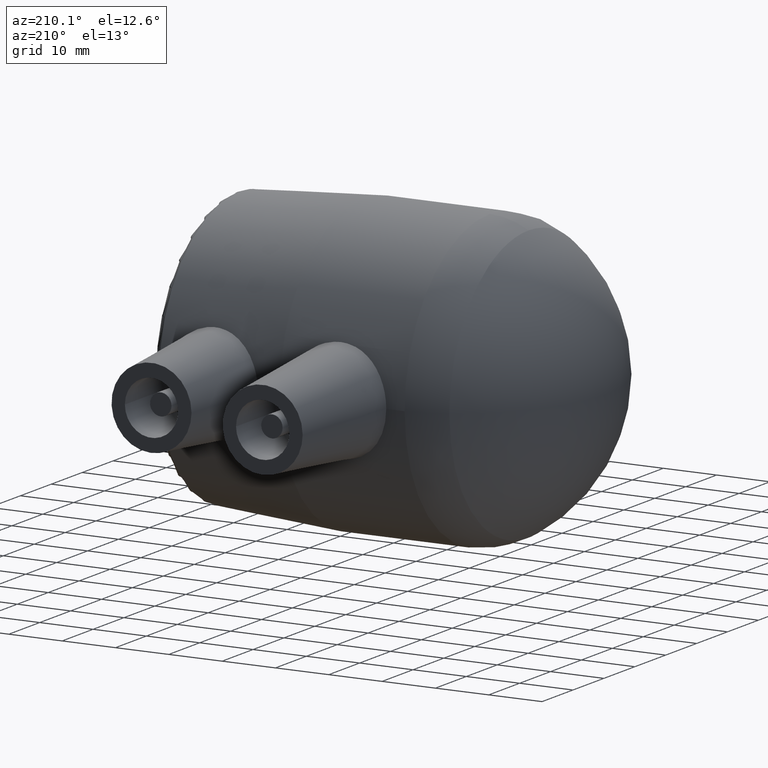
[diagram: clean part render]
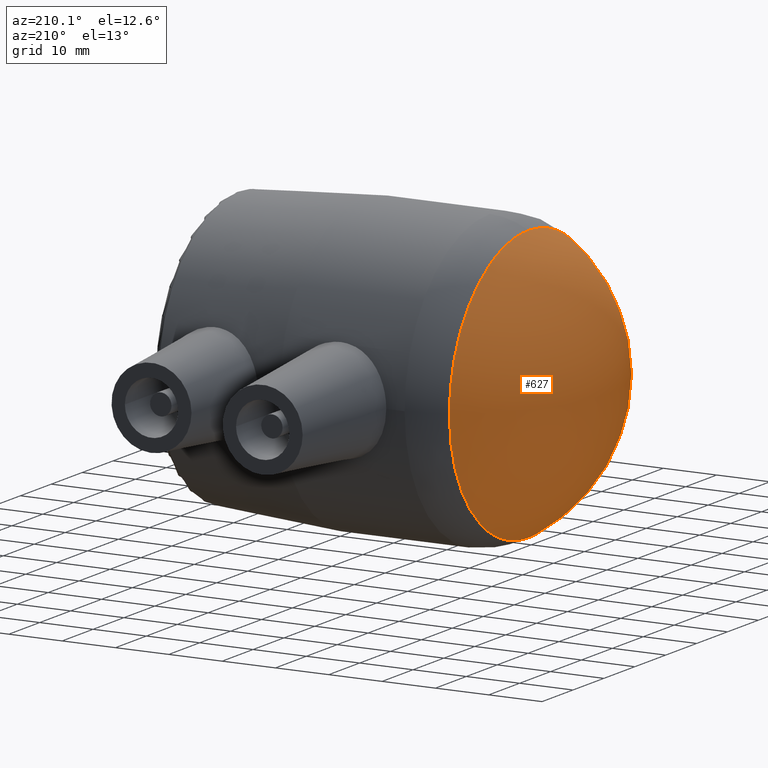
[diagram: same view with one face highlighted and labeled with its STEP entity id]
A machine part, auxiliary view. The second image highlights one B-rep face of the part: STEP entity #627.
In plain terms, the highlighted spherical surface has radius 29.5167 mm.
Its self-contained STEP definition (entity closure, byte-faithful):
#58=SPHERICAL_SURFACE('',#720,29.5166666666666);
#153=FACE_OUTER_BOUND('',#220,.T.);
#220=EDGE_LOOP('',(#557,#558));
#264=CIRCLE('',#713,25.5527192008879);
#265=CIRCLE('',#714,25.5527192008879);
#321=VERTEX_POINT('',#1241);
#322=VERTEX_POINT('',#1245);
#399=EDGE_CURVE('',#321,#322,#264,.T.);
#400=EDGE_CURVE('',#322,#321,#265,.T.);
#557=ORIENTED_EDGE('',*,*,#400,.F.);
#558=ORIENTED_EDGE('',*,*,#399,.F.);
#627=ADVANCED_FACE('',(#153),#58,.T.);
#713=AXIS2_PLACEMENT_3D('',#1246,#909,#910);
#714=AXIS2_PLACEMENT_3D('',#1247,#911,#912);
#720=AXIS2_PLACEMENT_3D('',#1255,#923,#924);
#909=DIRECTION('center_axis',(1.,2.83384649210207E-19,0.));
#910=DIRECTION('ref_axis',(0.,0.,-1.));
#911=DIRECTION('center_axis',(1.,2.83384649210207E-19,0.));
#912=DIRECTION('ref_axis',(0.,0.,-1.));
#923=DIRECTION('center_axis',(0.,0.,1.));
#924=DIRECTION('ref_axis',(1.,0.,0.));
#1241=CARTESIAN_POINT('',(-55.2580466148724,-1.56592821559969E-17,25.5527192008879));
#1245=CARTESIAN_POINT('',(-55.2580466148723,25.5527192008879,0.));
#1246=CARTESIAN_POINT('Origin',(-55.2580466148723,-1.56592821559969E-17,
0.));
#1247=CARTESIAN_POINT('Origin',(-55.2580466148723,-1.56592821559969E-17,
0.));
#1255=CARTESIAN_POINT('Origin',(-40.4833333333334,-1.98369254447145E-17,
0.));